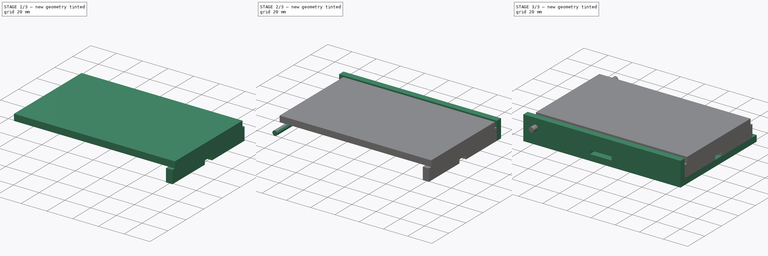
[diagram: build sequence overview — one tinted view per stage of 3, left to right]
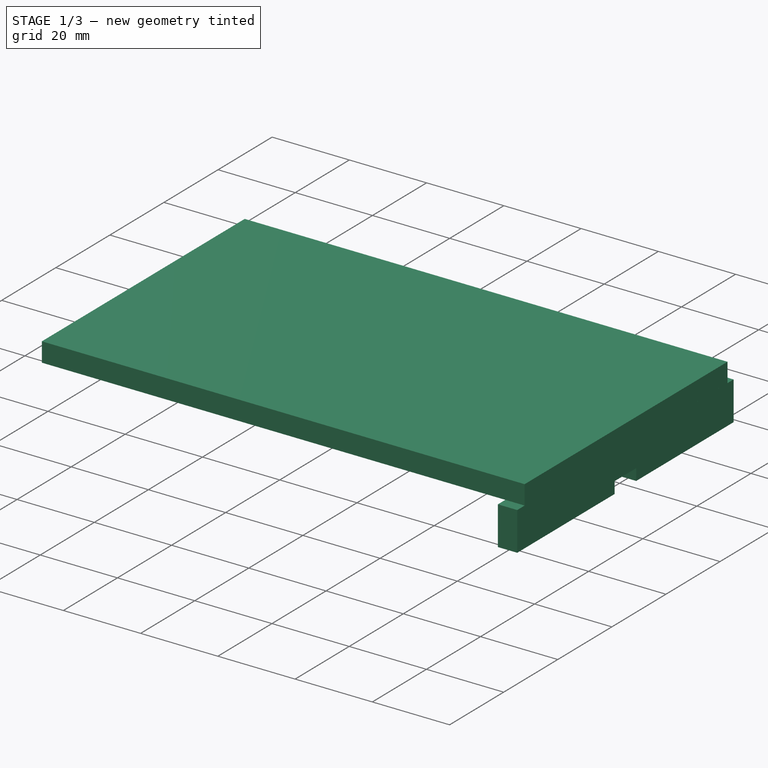
[diagram: stage 1 of 3 — iso view after this stage's code; geometry added in this stage tinted green]
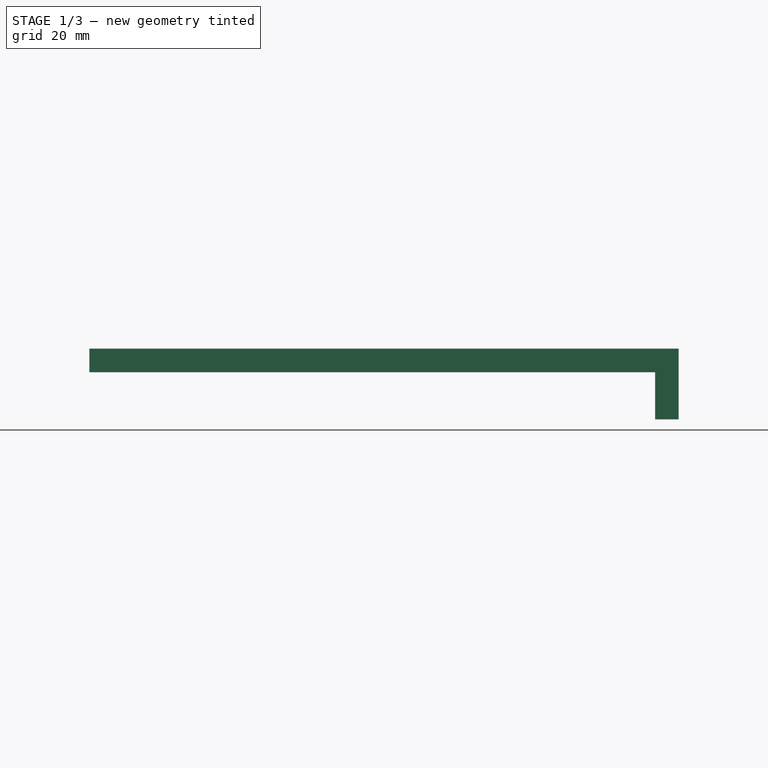
[diagram: stage 1 of 3 — front view after this stage's code; geometry added in this stage tinted green]
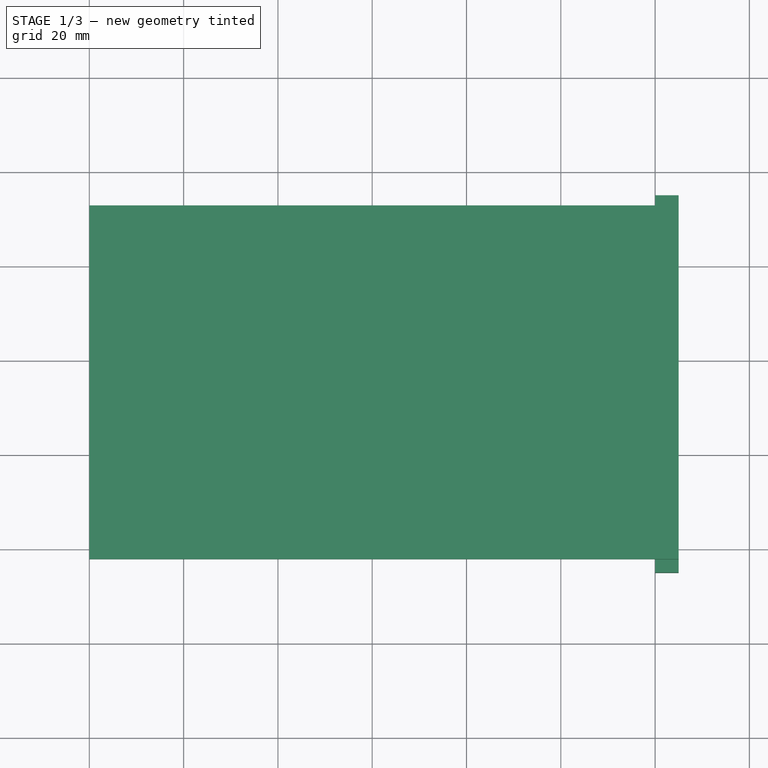
[diagram: stage 1 of 3 — top view after this stage's code; geometry added in this stage tinted green]
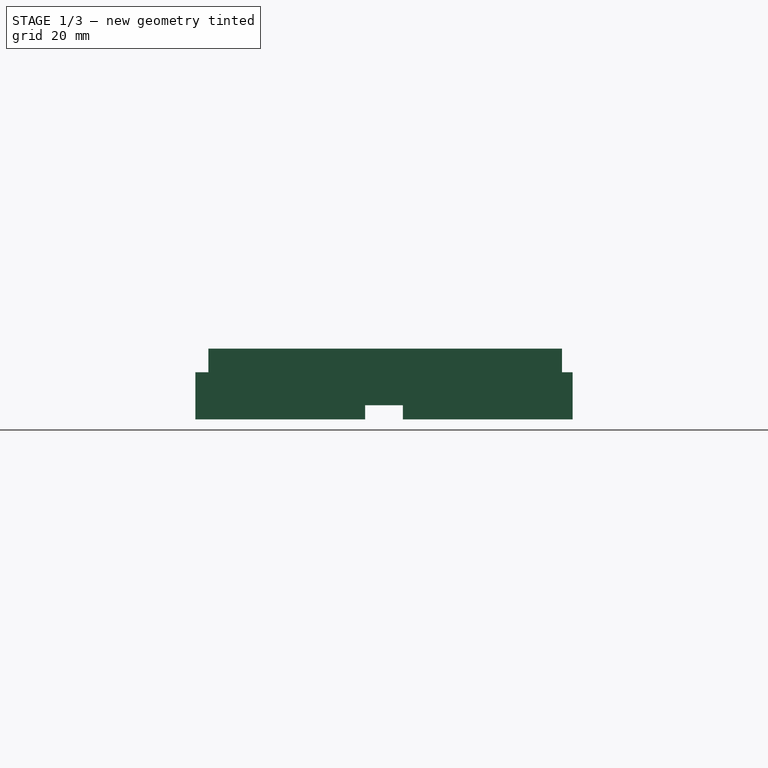
[diagram: stage 1 of 3 — right view after this stage's code; geometry added in this stage tinted green]
FCSTD DOCUMENT  (FreeCAD 0.15R4671 (Git))
Label: design
License: All rights reserved
LicenseURL: http://en.wikipedia.org/wiki/All_rights_reserved
objects: Sketcher::SketchObject×4, PartDesign::Pad×4, Part::FeaturePython×1, Part::Cylinder×1, App::DocumentObjectGroupPython×1
note: 14 computed .brp shape members not serialized (recipe doc carries the construction recipe); baked Part::Feature solids carry a one-line shape summary decoded from their .brp

FEATURE [Sketcher::SketchObject] Sketch003
  Placement = pos=(0,0,15) rot=(0,0,1;0rad)
  sketch-geometry (4):
    g0: LineSegment StartX=-60 StartY=-7.25 StartZ=0 EndX=65 EndY=-7.25 EndZ=0
    g1: LineSegment StartX=65 StartY=-7.25 StartZ=0 EndX=65 EndY=-82.25 EndZ=0
    g2: LineSegment StartX=65 StartY=-82.25 StartZ=0 EndX=-60 EndY=-82.25 EndZ=0
    g3: LineSegment StartX=-60 StartY=-82.25 StartZ=0 EndX=-60 EndY=-7.25 EndZ=0
  constraints (12):
    c: Coincident(g0,g1)
    c: Coincident(g1,g2)
    c: Coincident(g2,g3)
    c: Coincident(g3,g0)
    c: Horizontal(g0)
    c: Horizontal(g2)
    c: Vertical(g1)
    c: Vertical(g3)
    c: DistanceX(g0) = 125
    c: DistanceY(g3) = 75
    c: DistanceY(g-1,g0) = -7.25
    c: DistanceX(g-1,g0) = 65
FEATURE [PartDesign::Pad] Pad003
  Length = 5
  Length2 = 100
  Placement = pos=(0,0,15) rot=(0,0,1;0rad)
  Sketch = -> Sketch003
  Type = 0
FEATURE [App::DocumentObjectGroupPython] My_Placer  # scripted group (container) (typed FeaturePython)
  Placement = pos=(0,0,15) rot=(0,0,1;0rad)
  RotAxis = (0,1,0)
  RotCenter = (-55,0,-2)
  arc = time*360
  arc0 = 0
  arc1 = 90
  target = -> Pad003
  time = 0
  x = 0
  x0 = 0
  x1 = 200
  y = 0
  y0 = 0
  y1 = 0
  z = 15
  z0 = 0
  z1 = 0
FEATURE [PartDesign::Pad] Pad004  label="Pad002"
  Length = 5
  Length2 = 100
  Placement = pos=(60,0,0) rot=(0.57735,0.57735,0.57735;2.0944rad)
  Sketch = -> Sketch002
  Type = 0
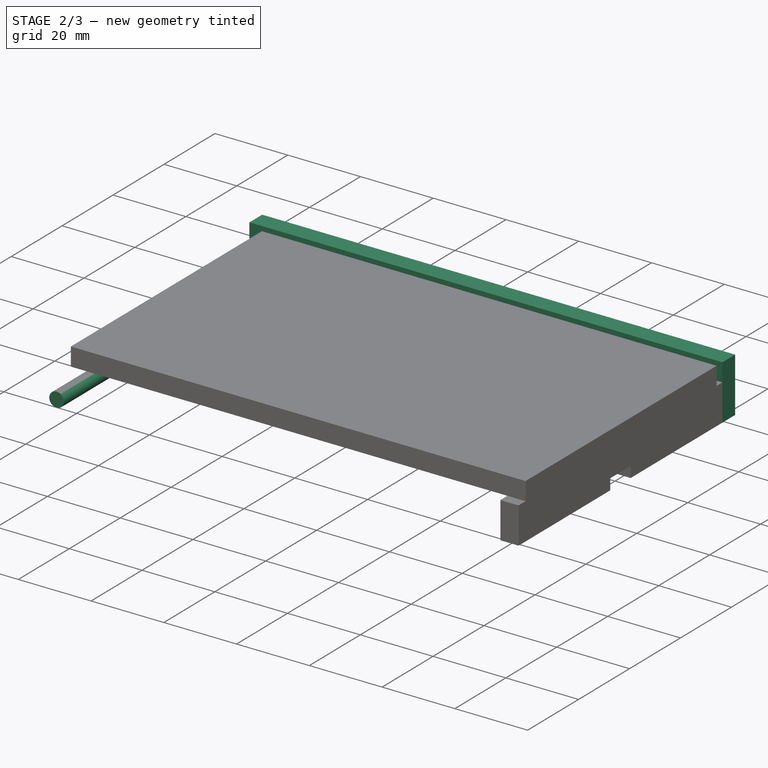
[diagram: stage 2 of 3 — iso view after this stage's code; geometry added in this stage tinted green]
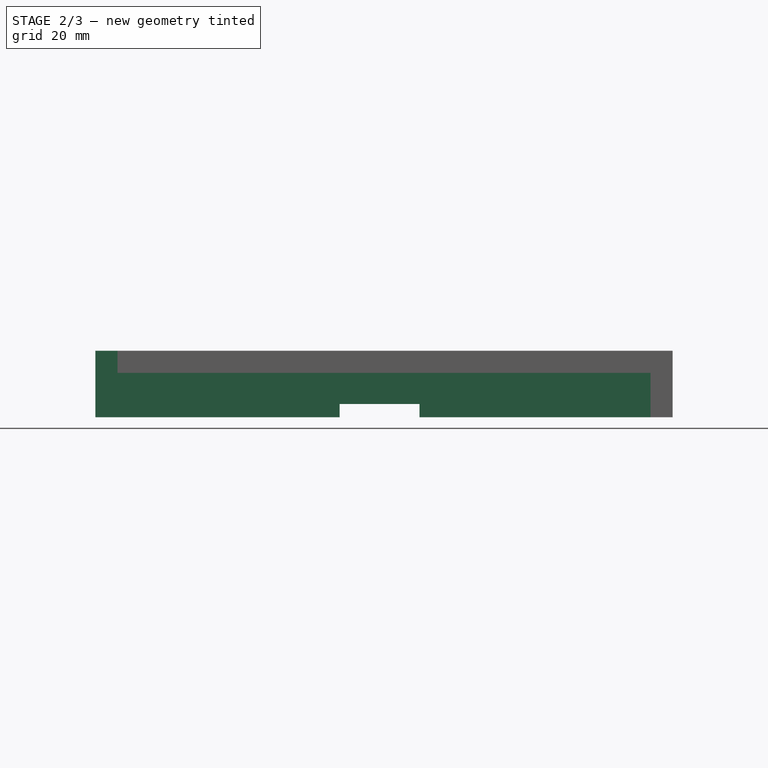
[diagram: stage 2 of 3 — front view after this stage's code; geometry added in this stage tinted green]
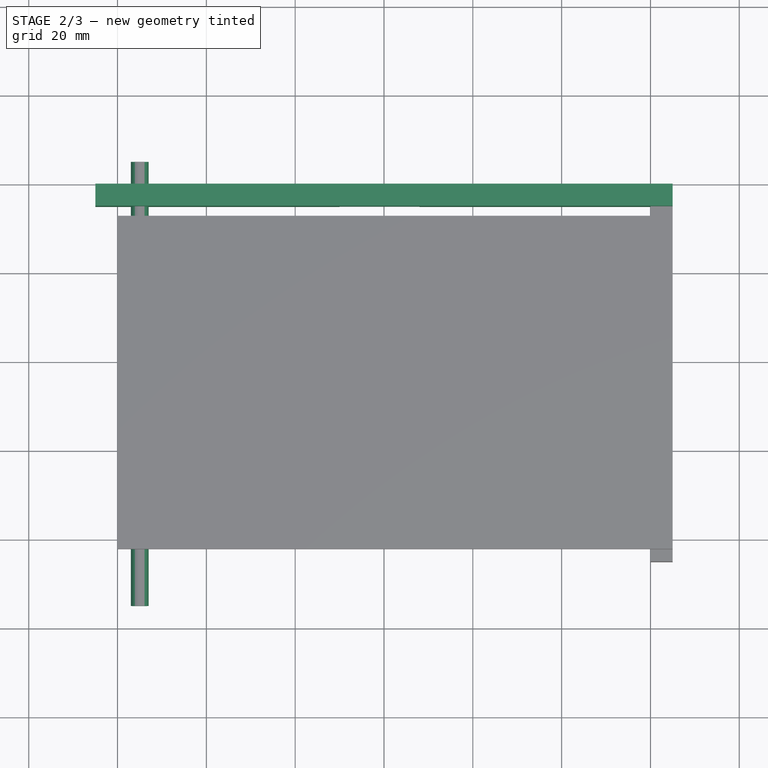
[diagram: stage 2 of 3 — top view after this stage's code; geometry added in this stage tinted green]
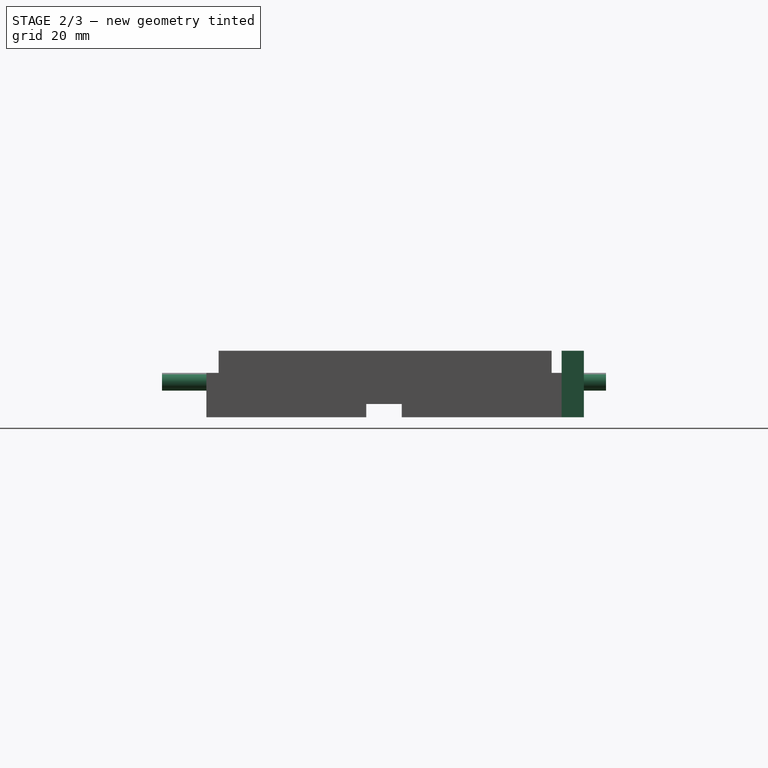
[diagram: stage 2 of 3 — right view after this stage's code; geometry added in this stage tinted green]
FEATURE [Sketcher::SketchObject] Sketch001
  Placement = pos=(0,0,0) rot=(-1,0,0;4.71239rad)
  sketch-geometry (9):
    g0: LineSegment StartX=-65 StartY=5 StartZ=0 EndX=-65 EndY=20 EndZ=0
    g1: LineSegment StartX=-65 StartY=20 StartZ=0 EndX=65 EndY=20 EndZ=0
    g2: LineSegment StartX=65 StartY=20 StartZ=0 EndX=65 EndY=5 EndZ=0
    g3: LineSegment StartX=65 StartY=5 StartZ=0 EndX=8 EndY=5 EndZ=0
    g4: LineSegment StartX=8 StartY=5 StartZ=0 EndX=8 EndY=8 EndZ=0
    g5: LineSegment StartX=8 StartY=8 StartZ=0 EndX=-10 EndY=8 EndZ=0
    g6: LineSegment StartX=-10 StartY=8 StartZ=0 EndX=-10 EndY=5 EndZ=0
    g7: LineSegment StartX=-10 StartY=5 StartZ=0 EndX=-65 EndY=5 EndZ=0
    g8: Circle CenterX=-55 CenterY=13 CenterZ=0 NormalX=0 NormalY=0 NormalZ=1 Radius=2
  constraints (27):
    c: Vertical(g0)
    c: Coincident(g0,g1)
    c: Horizontal(g1)
    c: Coincident(g1,g2)
    c: Vertical(g2)
    c: Coincident(g2,g3)
    c: Horizontal(g3)
    c: Coincident(g3,g4)
    c: Coincident(g4,g5)
    c: Horizontal(g5)
    c: Coincident(g5,g6)
    c: Vertical(g6)
    c: Coincident(g6,g7)
    c: Horizontal(g7)
    c: Coincident(g0,g7)
    c: Vertical(g4)
    c: Equal(g6,g4)
    c: DistanceX(g1) = 130
    c: DistanceY(g-1,g0) = 5
    c: DistanceY(g0) = 15
    c: DistanceX(g5) = -18
    c: DistanceX(g7) = -55
    c: DistanceY(g6) = -3
    c: DistanceX(g-1,g0) = -65
    c: Radius(g8) = 2
    c: DistanceX(g8,g0) = -10
    c: DistanceY(g8,g0) = -8
FEATURE [PartDesign::Pad] Pad001
  Length = 5
  Length2 = 100
  Placement = pos=(0,0,0) rot=(-1,0,0;4.71239rad)
  Sketch = -> Sketch001
  Type = 0
FEATURE [Sketcher::SketchObject] Sketch002
  Placement = pos=(60,0,0) rot=(0.57735,0.57735,0.57735;2.0944rad)
  sketch-geometry (8):
    g0: LineSegment StartX=-85 StartY=5 StartZ=0 EndX=-85 EndY=15 EndZ=0
    g1: LineSegment StartX=-85 StartY=15 StartZ=0 EndX=-5 EndY=15 EndZ=0
    g2: LineSegment StartX=-5 StartY=15 StartZ=0 EndX=-5 EndY=5 EndZ=0
    g3: LineSegment StartX=-5 StartY=5 StartZ=0 EndX=-41 EndY=5 EndZ=0
    g4: LineSegment StartX=-41 StartY=5 StartZ=0 EndX=-41 EndY=8 EndZ=0
    g5: LineSegment StartX=-41 StartY=8 StartZ=0 EndX=-49 EndY=8 EndZ=0
    g6: LineSegment StartX=-49 StartY=8 StartZ=0 EndX=-49 EndY=5 EndZ=0
    g7: LineSegment StartX=-49 StartY=5 StartZ=0 EndX=-85 EndY=5 EndZ=0
  constraints (24):
    c: Vertical(g0)
    c: Coincident(g0,g1)
    c: Horizontal(g1)
    c: Coincident(g1,g2)
    c: Vertical(g2)
    c: Coincident(g2,g3)
    c: Horizontal(g3)
    c: Coincident(g3,g4)
    c: Vertical(g4)
    c: Coincident(g4,g5)
    c: Horizontal(g5)
    c: Coincident(g5,g6)
    c: Vertical(g6)
    c: Coincident(g6,g7)
    c: Horizontal(g7)
    c: Coincident(g0,g7)
    c: DistanceX(g1) = 80
    c: DistanceY(g2) = -10
    c: DistanceY(g-1,g2) = 5
    c: DistanceX(g5) = -8
    c: DistanceY(g4) = 3
    c: DistanceX(g7) = -36
    c: Equal(g6,g4)
    c: DistanceX(g-1,g2) = -5
FEATURE [Part::Cylinder] Cylinder
  Angle = 360
  Height = 100
  Placement = pos=(-55,5,13) rot=(1,0,0;1.5708rad)
  Radius = 2
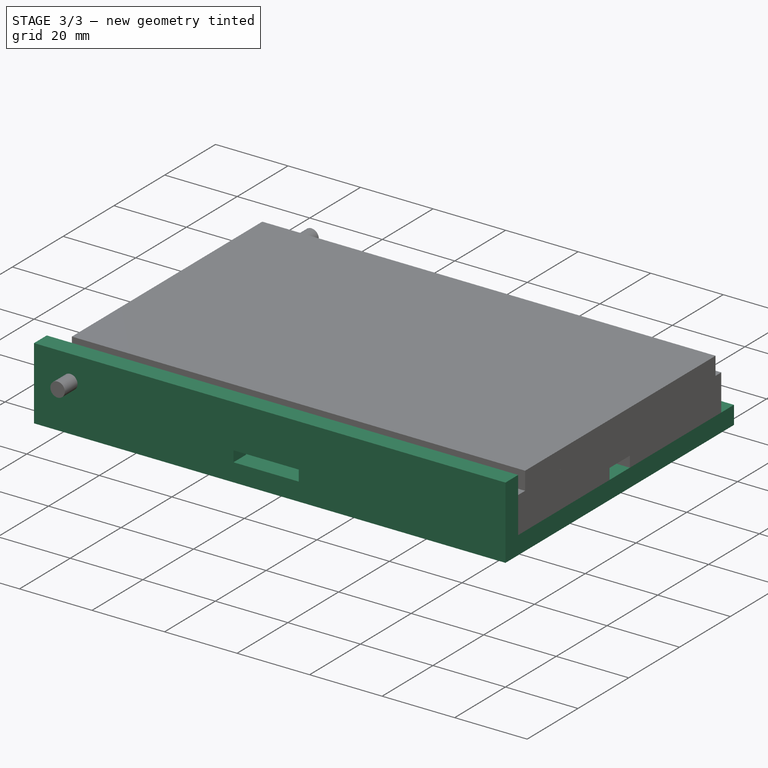
[diagram: stage 3 of 3 — iso view after this stage's code; geometry added in this stage tinted green]
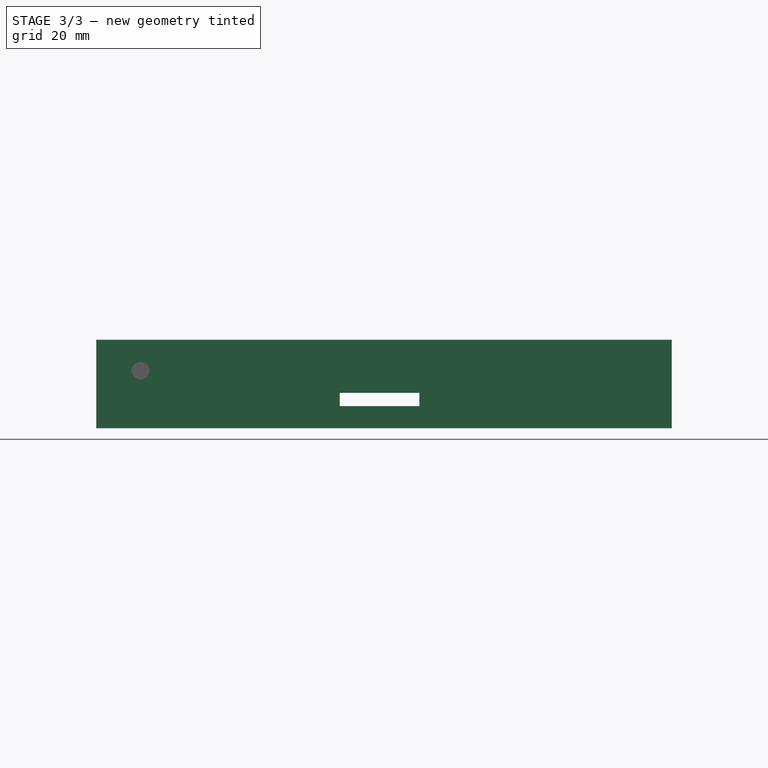
[diagram: stage 3 of 3 — front view after this stage's code; geometry added in this stage tinted green]
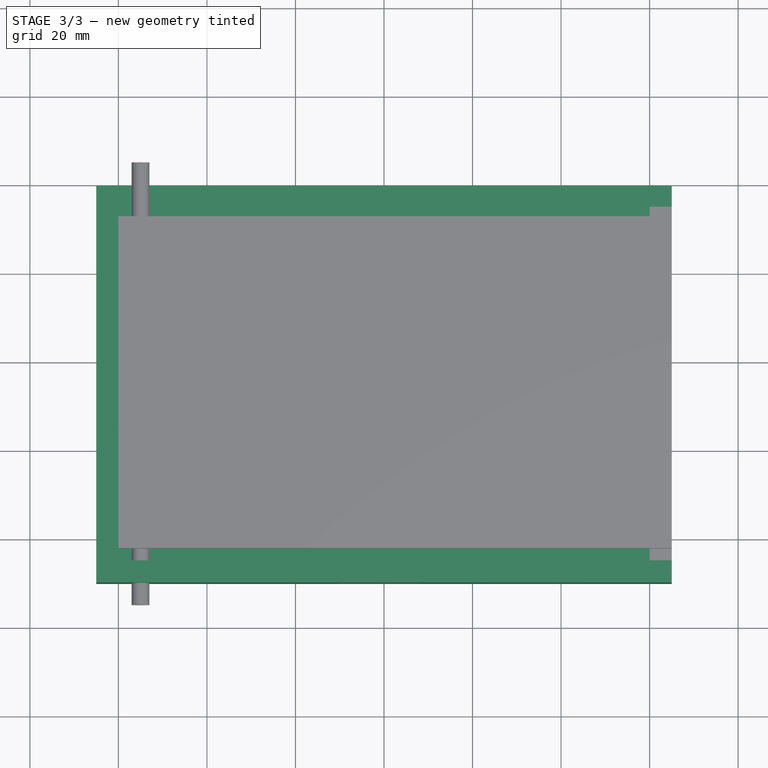
[diagram: stage 3 of 3 — top view after this stage's code; geometry added in this stage tinted green]
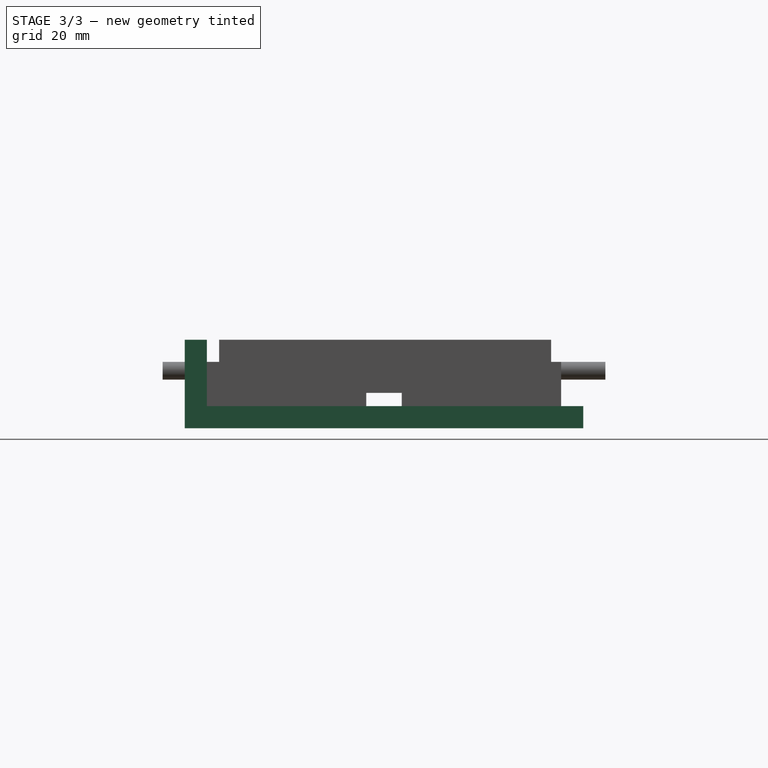
[diagram: stage 3 of 3 — right view after this stage's code; geometry added in this stage tinted green]
FEATURE [Sketcher::SketchObject] Sketch
  sketch-geometry (4):
    g0: LineSegment StartX=-65 StartY=0 StartZ=0 EndX=65 EndY=0 EndZ=0
    g1: LineSegment StartX=65 StartY=0 StartZ=0 EndX=65 EndY=-90 EndZ=0
    g2: LineSegment StartX=65 StartY=-90 StartZ=0 EndX=-65 EndY=-90 EndZ=0
    g3: LineSegment StartX=-65 StartY=-90 StartZ=0 EndX=-65 EndY=0 EndZ=0
  constraints (12):
    c: Coincident(g0,g1)
    c: Coincident(g1,g2)
    c: Coincident(g2,g3)
    c: Coincident(g3,g0)
    c: Horizontal(g0)
    c: Horizontal(g2)
    c: Vertical(g1)
    c: Vertical(g3)
    c: DistanceX(g0) = 130
    c: DistanceY(g3) = 90
    c: DistanceY(g-1,g0) = 0
    c: Symmetric(g0,g0,g-2)
FEATURE [PartDesign::Pad] Pad  label="Base"
  Length = 5
  Length2 = 100
  Sketch = -> Sketch
  Type = 0
FEATURE [Part::FeaturePython] Clone  label="Clone of Pad001"  # Draft clone (typed FeaturePython)
  Objects = -> [Pad001]
  Placement = pos=(0,-85,0) rot=(1,0,0;1.5708rad)
  Scale = (1,1,1)
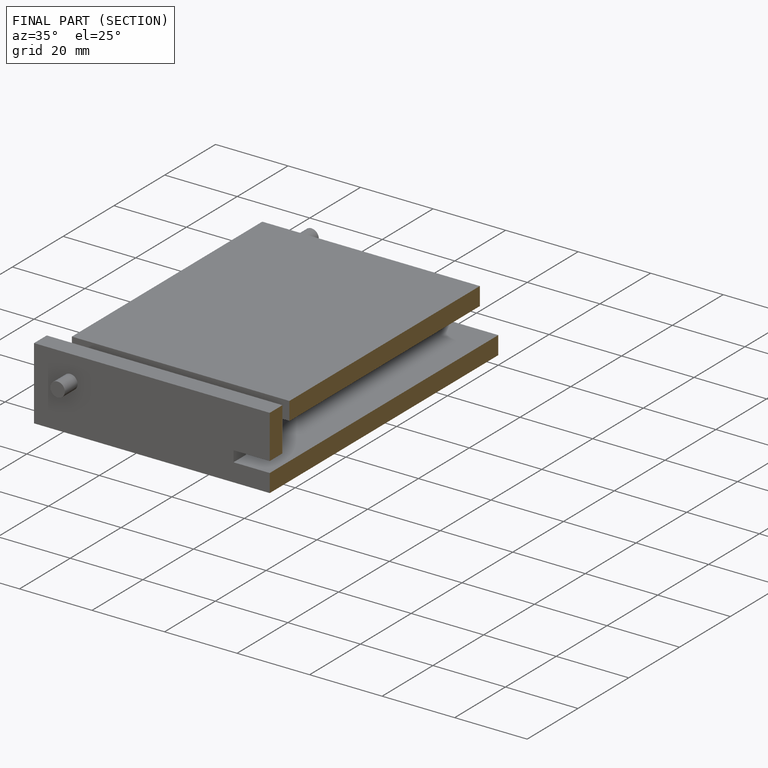
[diagram: finished part — half-section view (interior)]
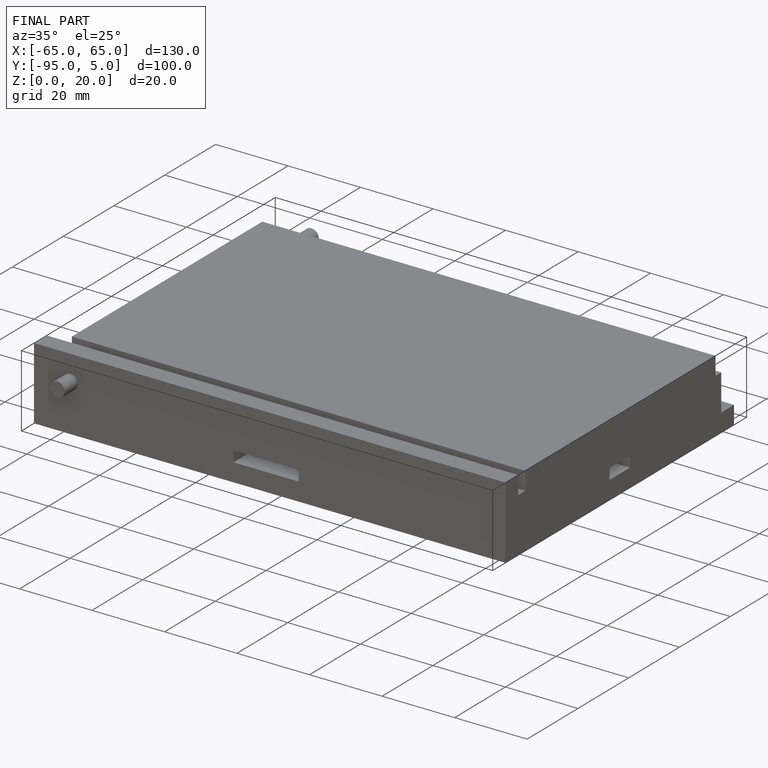
[diagram: finished part — iso view with bounding-box wireframe]
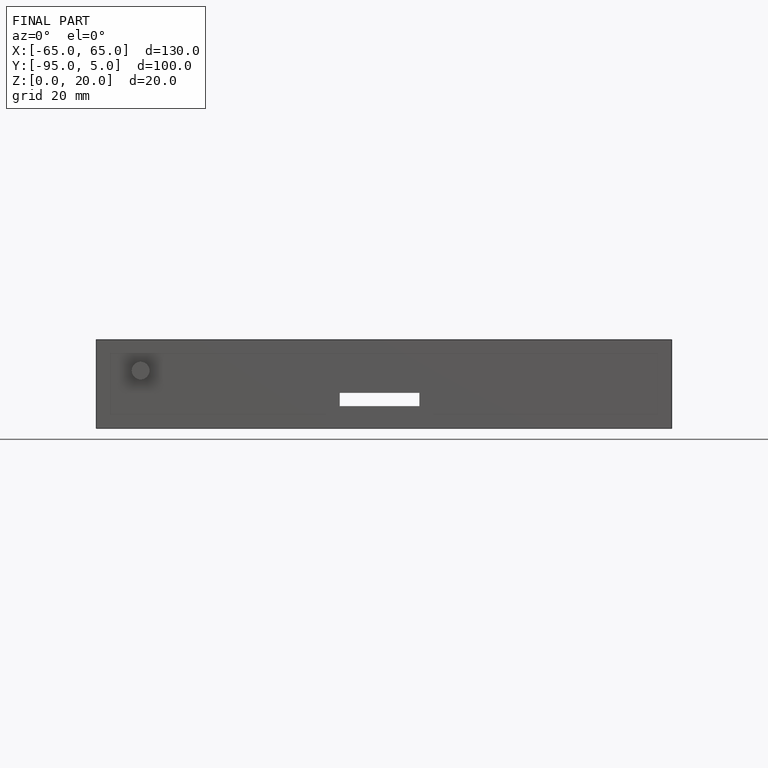
[diagram: finished part — front view with bounding-box wireframe]
